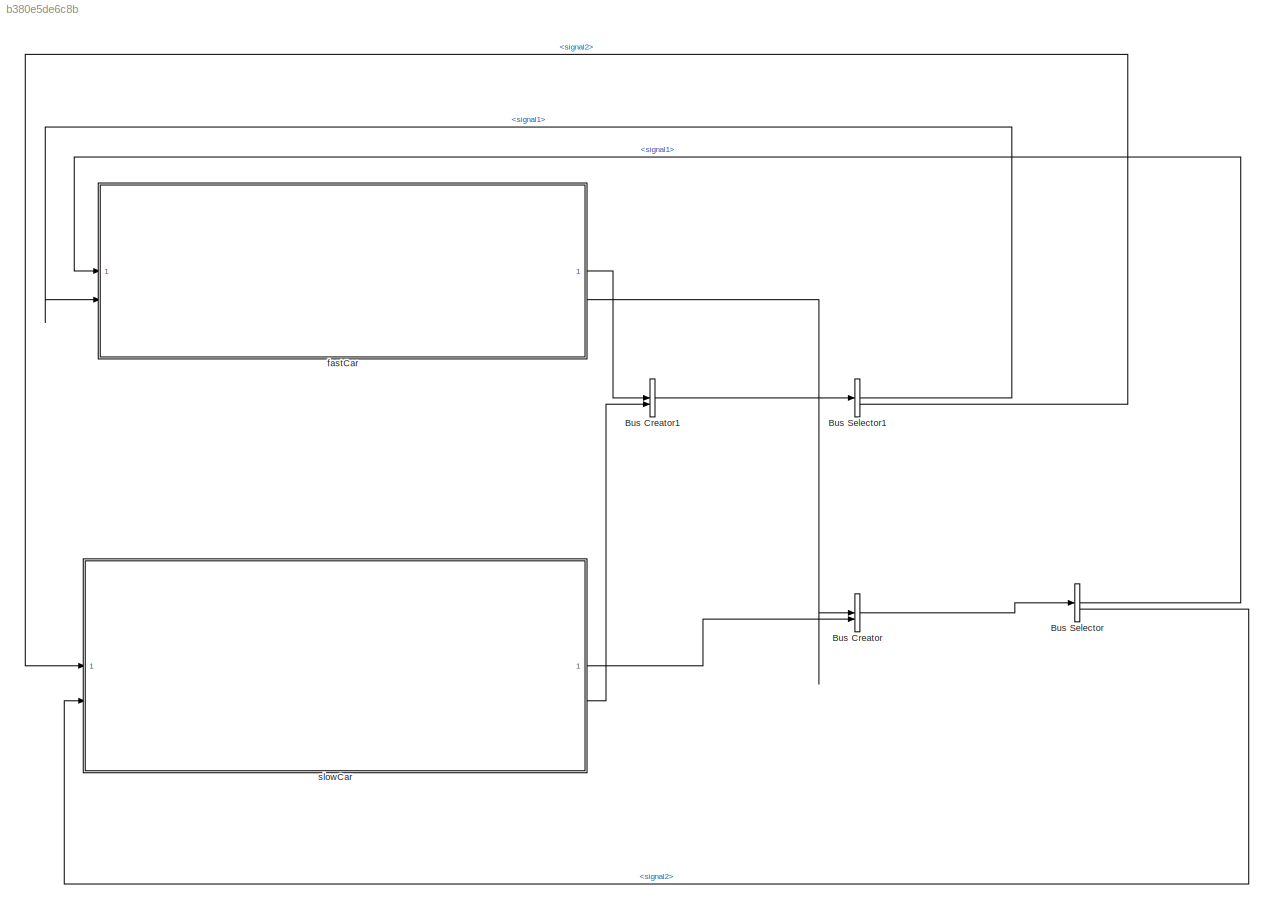
MODEL slx_b380e5de6c8b
KIND model
CONFIG AbsTol = auto
CONFIG EnableMultiTasking = off
CONFIG FixedStep = auto
CONFIG MaxStep = auto
CONFIG MinStep = auto
CONFIG RelTol = 1e-3
CONFIG SampleTimeConstraint = Unconstrained
CONFIG SolverName = VariableStepAuto
CONFIG StartTime = 0.0
CONFIG StopTime = 10.0
BLOCK [BusCreator] Bus Creator
  DisplayOption = bar
  InheritFromInputs = on
  Inputs = 2
BLOCK [BusCreator] Bus Creator1
  DisplayOption = bar
  InheritFromInputs = on
  Inputs = 2
BLOCK [BusSelector] Bus Selector
  OutputSignals = signal1,signal2
BLOCK [BusSelector] Bus Selector1
  OutputSignals = signal1,signal2
BLOCK [ModelReference] fastCar
  ModelNameDialog = RoboCarModel.slx
  ModelReferenceVersion = 1.75
  PortSchema = {"entries":[{"content":{"sides":[{"content":{"connectorIds":["In1","In2"]},"type":"ConnectorPlacement.EquallySpacedRectSide","uuid":"95733cf0-032d-453a-9995-7e8d3e1a24c3"},{"content":{"connectorIds":["Out2","Out1","Out3"],"side":"RIGHT"},"type":"ConnectorPlacement.EquallySpacedRectSide","uuid":"8d40af39-e74b-4bad-b693-9b5567a60d93"},{"content":{"side":"TOP"},"type":"ConnectorPlacement.EquallySpace...<+242ch>
BLOCK [ModelReference] slowCar
  ModelNameDialog = RoboCarModel.slx
  ModelReferenceVersion = 1.75
  PortSchema = {"entries":[{"content":{"sides":[{"content":{"connectorIds":["In1","In2"]},"type":"ConnectorPlacement.EquallySpacedRectSide","uuid":"95733cf0-032d-453a-9995-7e8d3e1a24c3"},{"content":{"connectorIds":["Out2","Out1","Out3"],"side":"RIGHT"},"type":"ConnectorPlacement.EquallySpacedRectSide","uuid":"8d40af39-e74b-4bad-b693-9b5567a60d93"},{"content":{"side":"TOP"},"type":"ConnectorPlacement.EquallySpace...<+242ch>
LINE Bus Creator1:1 -> Bus Selector1:1
LINE Bus Creator:1 -> Bus Selector:1
LINE Bus Selector1:1 -> fastCar:2
LINE Bus Selector1:2 -> slowCar:1
LINE Bus Selector:1 -> fastCar:1
LINE Bus Selector:2 -> slowCar:2
LINE fastCar:1 -> Bus Creator1:1
LINE fastCar:2 -> Bus Creator:1
LINE slowCar:1 -> Bus Creator:2
LINE slowCar:2 -> Bus Creator1:2
